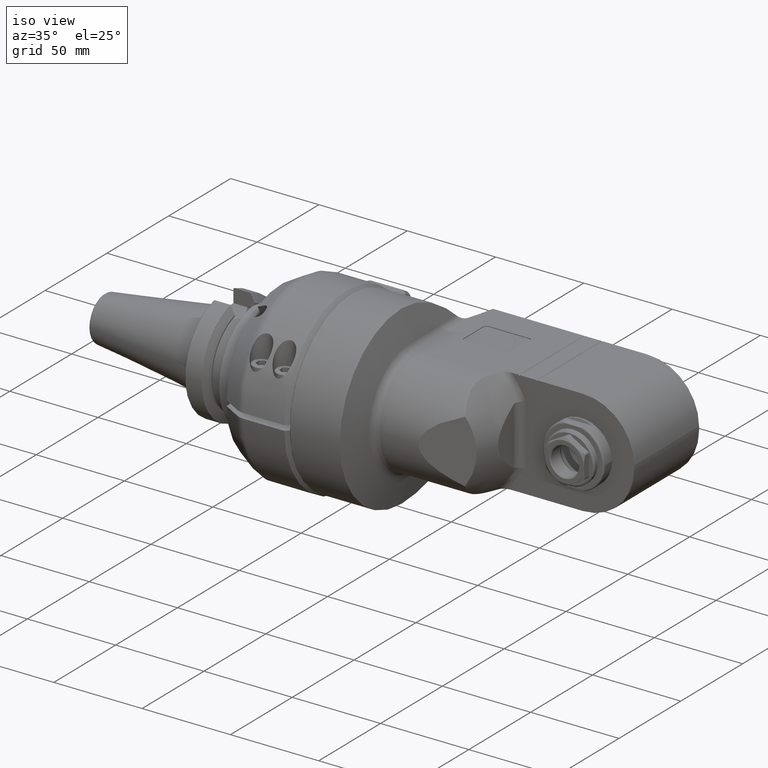
[diagram: clean part render]
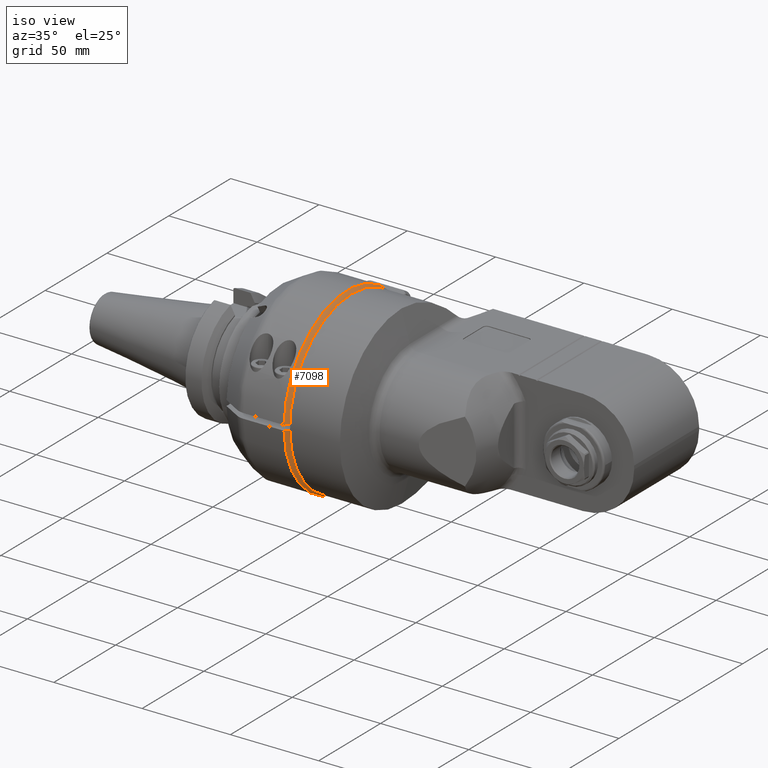
[diagram: same view with one face highlighted and labeled with its STEP entity id]
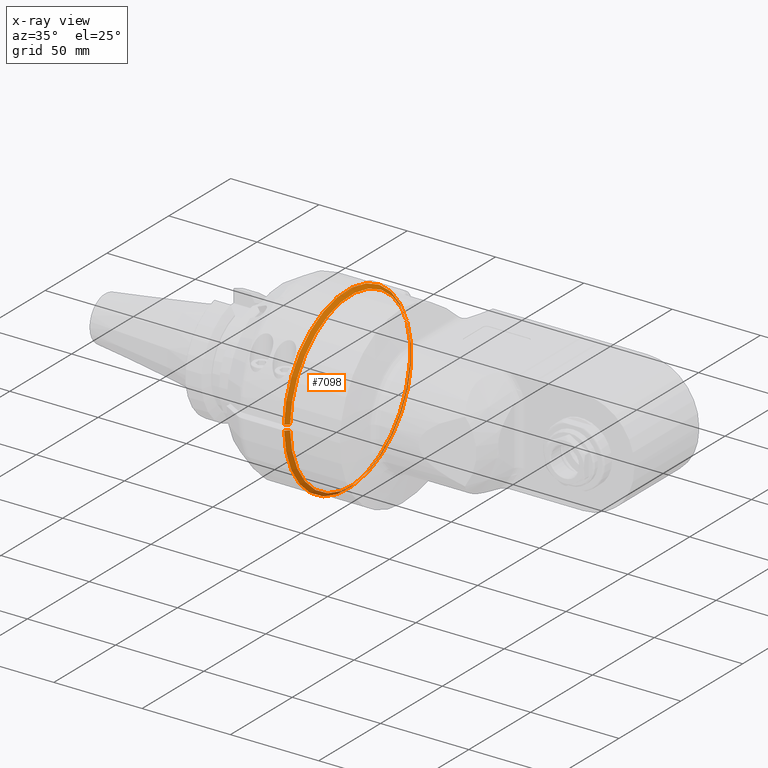
[diagram: x-ray of the same camera — body ghosted, the highlighted face saturated]
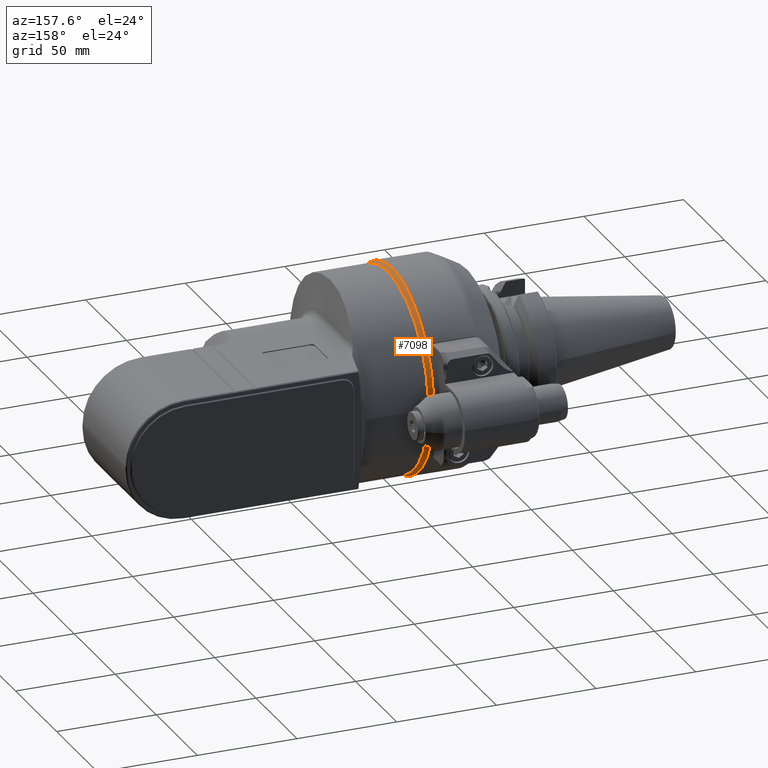
[diagram: same view with one face highlighted and labeled with its STEP entity id]
A machine part, iso view. The second image highlights one B-rep face of the part: STEP entity #7098.
The next image is the same camera in x-ray: the body ghosted, the highlighted face saturated — about 12% of this face is hidden behind the body in this view.
A second angle (auxiliary view) of the same face is appended — the face is thin or edge-on in the first view.
In plain terms, the highlighted conical surface has half-angle 45 deg.
Its self-contained STEP definition (entity closure, byte-faithful):
#65=(
BOUNDED_CURVE()
B_SPLINE_CURVE(2,(#11216,#11217,#11218),.UNSPECIFIED.,.F.,.F.)
B_SPLINE_CURVE_WITH_KNOTS((3,3),(-0.564591459525085,-0.191486343836374),
 .UNSPECIFIED.)
CURVE()
GEOMETRIC_REPRESENTATION_ITEM()
RATIONAL_B_SPLINE_CURVE((1.00850972307627,1.00599717540352,1.00308912932))
REPRESENTATION_ITEM('')
);
#66=(
BOUNDED_CURVE()
B_SPLINE_CURVE(2,(#11221,#11222,#11223),.UNSPECIFIED.,.F.,.F.)
B_SPLINE_CURVE_WITH_KNOTS((3,3),(-5.67826879781681,-5.3051636821038),
 .UNSPECIFIED.)
CURVE()
GEOMETRIC_REPRESENTATION_ITEM()
RATIONAL_B_SPLINE_CURVE((1.00308912932,1.00599717540371,1.00850972307659))
REPRESENTATION_ITEM('')
);
#600=CONICAL_SURFACE('',#7702,50.,0.785398163397448);
#775=FACE_OUTER_BOUND('',#1229,.T.);
#1229=EDGE_LOOP('',(#5273,#5274,#5275,#5276));
#2700=CIRCLE('',#7697,51.);
#2705=CIRCLE('',#7703,49.);
#3126=VERTEX_POINT('',#11145);
#3127=VERTEX_POINT('',#11146);
#3133=VERTEX_POINT('',#11215);
#3134=VERTEX_POINT('',#11219);
#3923=EDGE_CURVE('',#3126,#3127,#2700,.T.);
#3933=EDGE_CURVE('',#3127,#3133,#65,.T.);
#3934=EDGE_CURVE('',#3134,#3133,#2705,.T.);
#3935=EDGE_CURVE('',#3134,#3126,#66,.T.);
#5273=ORIENTED_EDGE('',*,*,#3923,.T.);
#5274=ORIENTED_EDGE('',*,*,#3933,.T.);
#5275=ORIENTED_EDGE('',*,*,#3934,.F.);
#5276=ORIENTED_EDGE('',*,*,#3935,.T.);
#7098=ADVANCED_FACE('',(#775),#600,.T.);
#7697=AXIS2_PLACEMENT_3D('',#11147,#8827,#8828);
#7702=AXIS2_PLACEMENT_3D('',#11214,#8839,#8840);
#7703=AXIS2_PLACEMENT_3D('',#11220,#8841,#8842);
#8827=DIRECTION('center_axis',(1.,0.,0.));
#8828=DIRECTION('ref_axis',(0.,1.,0.));
#8839=DIRECTION('center_axis',(-1.,0.,0.));
#8840=DIRECTION('ref_axis',(0.,1.,0.));
#8841=DIRECTION('center_axis',(1.,0.,0.));
#8842=DIRECTION('ref_axis',(0.,1.,0.));
#11145=CARTESIAN_POINT('',(-14.,-50.9779364039,-1.5));
#11146=CARTESIAN_POINT('',(-14.,-50.9779364039,1.5));
#11147=CARTESIAN_POINT('Origin',(-14.,0.,0.));
#11214=CARTESIAN_POINT('Origin',(-13.,0.,0.));
#11215=CARTESIAN_POINT('',(-12.,-48.97703543499,1.5));
#11216=CARTESIAN_POINT('Ctrl Pts',(-14.0000000000021,-50.9779364038979,
1.5));
#11217=CARTESIAN_POINT('Ctrl Pts',(-12.9799819768498,-49.9574769100383,
1.5));
#11218=CARTESIAN_POINT('Ctrl Pts',(-12.0000000000021,-48.9770354349879,
1.5));
#11219=CARTESIAN_POINT('',(-12.,-48.97703543499,-1.5));
#11220=CARTESIAN_POINT('Origin',(-12.,0.,0.));
#11221=CARTESIAN_POINT('Ctrl Pts',(-12.0000000000021,-48.9770354349879,
-1.5));
#11222=CARTESIAN_POINT('Ctrl Pts',(-12.9799819769135,-49.957476910102,-1.5));
#11223=CARTESIAN_POINT('Ctrl Pts',(-14.0000000001347,-50.9779364040305,
-1.5));